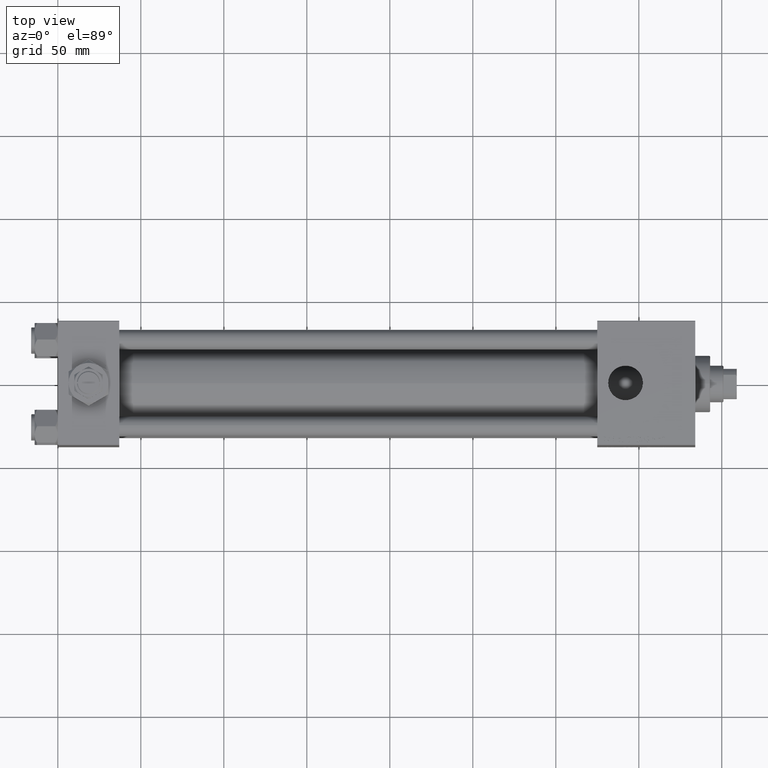
[diagram: clean part render]
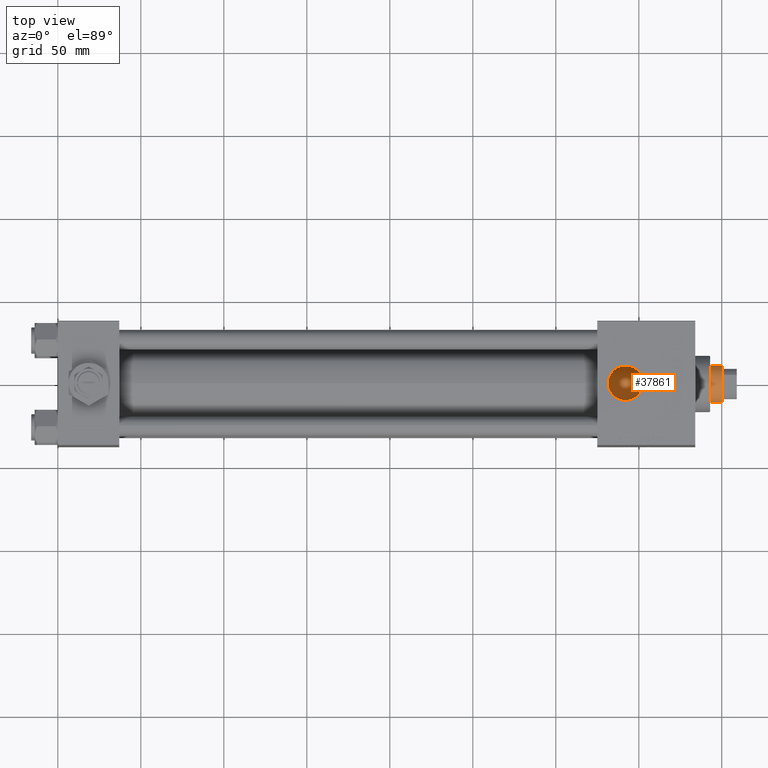
[diagram: same view with one face highlighted and labeled with its STEP entity id]
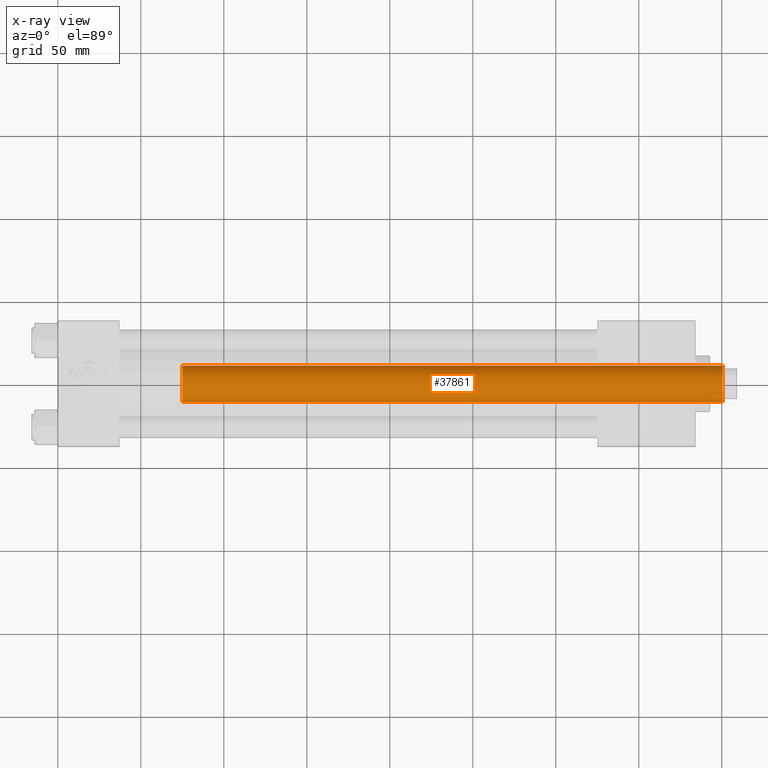
[diagram: x-ray of the same camera — body ghosted, the highlighted face saturated]
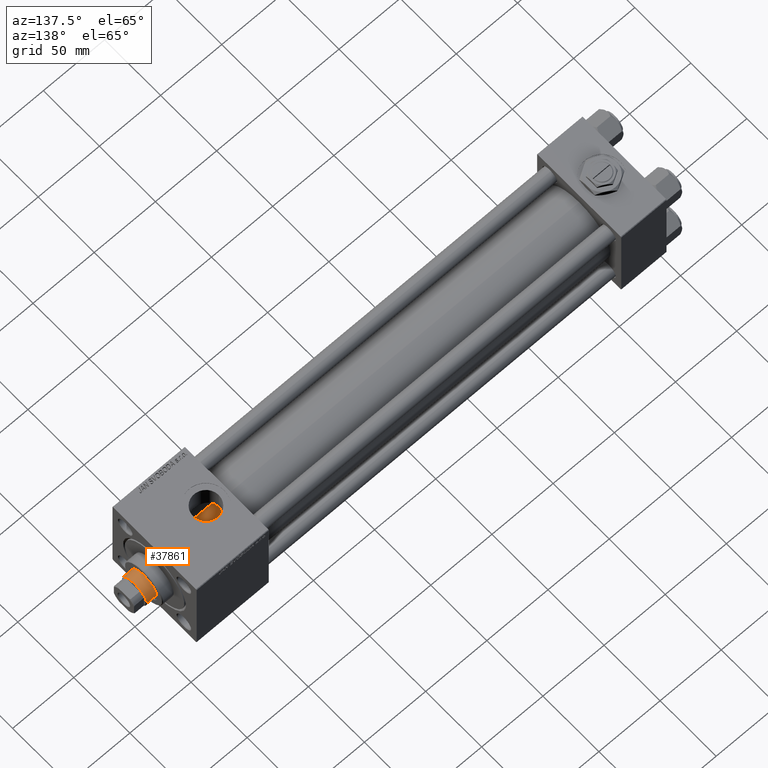
[diagram: same view with one face highlighted and labeled with its STEP entity id]
A machine part, top view. The second image highlights one B-rep face of the part: STEP entity #37861.
The next image is the same camera in x-ray: the body ghosted, the highlighted face saturated — about 0% of this face is hidden behind the body in this view.
A second angle (auxiliary view) of the same face is appended — the face is thin or edge-on in the first view.
In plain terms, the highlighted cylindrical surface (edge-blend (fillet) strip) has radius 11 mm, axis along (-1, 0, 0).
Its self-contained STEP definition (entity closure, byte-faithful):
#683 = CIRCLE ( 'NONE', #46365, 11.00000000000000000 ) ;
#1730 = DIRECTION ( 'NONE',  ( 0.000000000000000000, 0.000000000000000000, 1.000000000000000000 ) ) ;
#2437 = VERTEX_POINT ( 'NONE', #12851 ) ;
#3284 = CARTESIAN_POINT ( 'NONE',  ( 11.00000000000000000, 1.347111479062088405E-15, 364.0000000000000000 ) ) ;
#3496 = VERTEX_POINT ( 'NONE', #50296 ) ;
#4115 = ORIENTED_EDGE ( 'NONE', *, *, #38932, .T. ) ;
#7892 = AXIS2_PLACEMENT_3D ( 'NONE', #22381, #30581, #31622 ) ;
#8890 = DIRECTION ( 'NONE',  ( 1.000000000000000000, 0.000000000000000000, 0.000000000000000000 ) ) ;
#11121 = ORIENTED_EDGE ( 'NONE', *, *, #24235, .T. ) ;
#12851 = CARTESIAN_POINT ( 'NONE',  ( 11.00000000000000000, 1.347111479062088405E-15, 38.00000000000000000 ) ) ;
#12905 = CARTESIAN_POINT ( 'NONE',  ( -11.00000000000000000, 0.000000000000000000, 364.0000000000000000 ) ) ;
#14220 = CYLINDRICAL_SURFACE ( 'NONE', #7892, 11.00000000000000000 ) ;
#14576 = VERTEX_POINT ( 'NONE', #40553 ) ;
#15689 = DIRECTION ( 'NONE',  ( -0.000000000000000000, -0.000000000000000000, -1.000000000000000000 ) ) ;
#15772 = DIRECTION ( 'NONE',  ( 1.000000000000000000, 0.000000000000000000, 0.000000000000000000 ) ) ;
#22381 = CARTESIAN_POINT ( 'NONE',  ( 0.000000000000000000, 0.000000000000000000, 364.0000000000000000 ) ) ;
#23685 = DIRECTION ( 'NONE',  ( 0.000000000000000000, 0.000000000000000000, -1.000000000000000000 ) ) ;
#24235 = EDGE_CURVE ( 'NONE', #36011, #2437, #683, .T. ) ;
#29215 = CARTESIAN_POINT ( 'NONE',  ( 0.000000000000000000, 0.000000000000000000, 38.00000000000000000 ) ) ;
#30581 = DIRECTION ( 'NONE',  ( -0.000000000000000000, -0.000000000000000000, -1.000000000000000000 ) ) ;
#31622 = DIRECTION ( 'NONE',  ( -1.000000000000000000, 0.000000000000000000, 0.000000000000000000 ) ) ;
#31866 = EDGE_CURVE ( 'NONE', #3496, #36011, #49092, .T. ) ;
#32398 = AXIS2_PLACEMENT_3D ( 'NONE', #47741, #23685, #15772 ) ;
#33005 = VECTOR ( 'NONE', #37467, 1000.000000000000000 ) ;
#33184 = ORIENTED_EDGE ( 'NONE', *, *, #31866, .T. ) ;
#36011 = VERTEX_POINT ( 'NONE', #47987 ) ;
#37467 = DIRECTION ( 'NONE',  ( -0.000000000000000000, -0.000000000000000000, -1.000000000000000000 ) ) ;
#37861 = ADVANCED_FACE ( 'NONE', ( #50411 ), #14220, .T. ) ;
#38932 = EDGE_CURVE ( 'NONE', #14576, #3496, #43333, .T. ) ;
#40553 = CARTESIAN_POINT ( 'NONE',  ( 11.00000000000000000, 1.347111479062088405E-15, 363.4999999999999432 ) ) ;
#43333 = CIRCLE ( 'NONE', #32398, 11.00000000000000000 ) ;
#44436 = ORIENTED_EDGE ( 'NONE', *, *, #48518, .F. ) ;
#46365 = AXIS2_PLACEMENT_3D ( 'NONE', #29215, #1730, #8890 ) ;
#47655 = LINE ( 'NONE', #3284, #51175 ) ;
#47741 = CARTESIAN_POINT ( 'NONE',  ( 0.000000000000000000, 0.000000000000000000, 363.4999999999999432 ) ) ;
#47987 = CARTESIAN_POINT ( 'NONE',  ( -11.00000000000000000, 0.000000000000000000, 38.00000000000000000 ) ) ;
#48344 = EDGE_LOOP ( 'NONE', ( #44436, #4115, #33184, #11121 ) ) ;
#48518 = EDGE_CURVE ( 'NONE', #14576, #2437, #47655, .T. ) ;
#49092 = LINE ( 'NONE', #12905, #33005 ) ;
#50296 = CARTESIAN_POINT ( 'NONE',  ( -11.00000000000000000, 0.000000000000000000, 363.4999999999999432 ) ) ;
#50411 = FACE_OUTER_BOUND ( 'NONE', #48344, .T. ) ;
#51175 = VECTOR ( 'NONE', #15689, 1000.000000000000000 ) ;